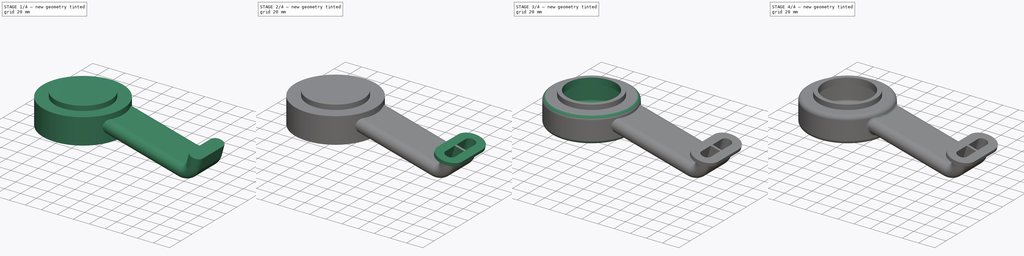
[diagram: build sequence overview — one tinted view per stage of 4, left to right]
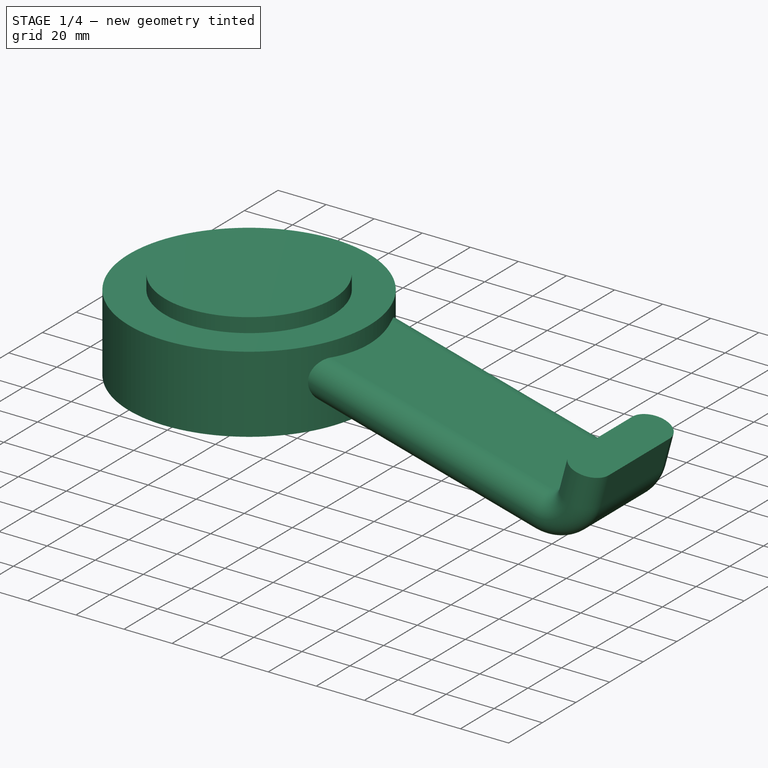
[diagram: stage 1 of 4 — iso view after this stage's code; geometry added in this stage tinted green]
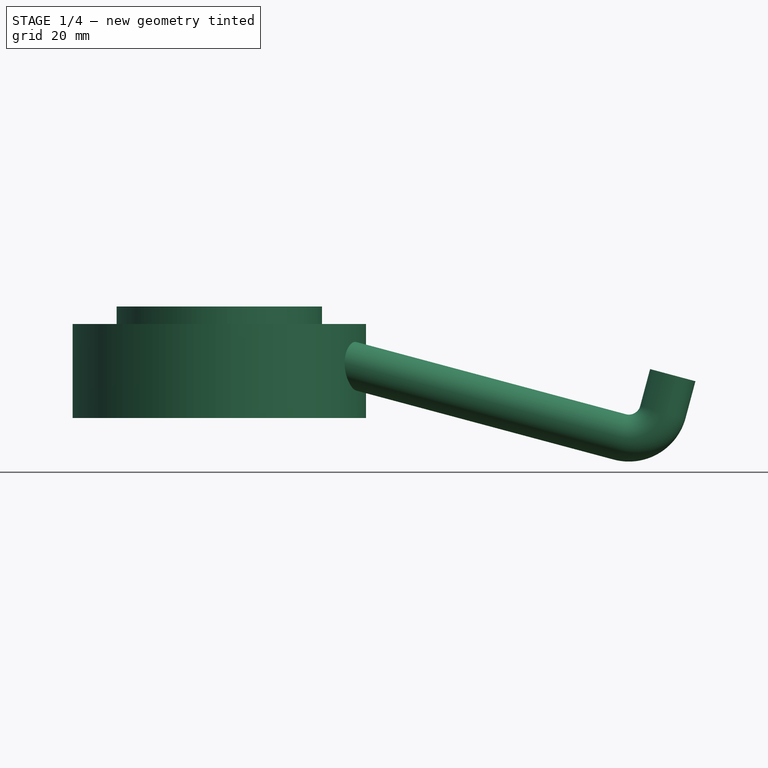
[diagram: stage 1 of 4 — front view after this stage's code; geometry added in this stage tinted green]
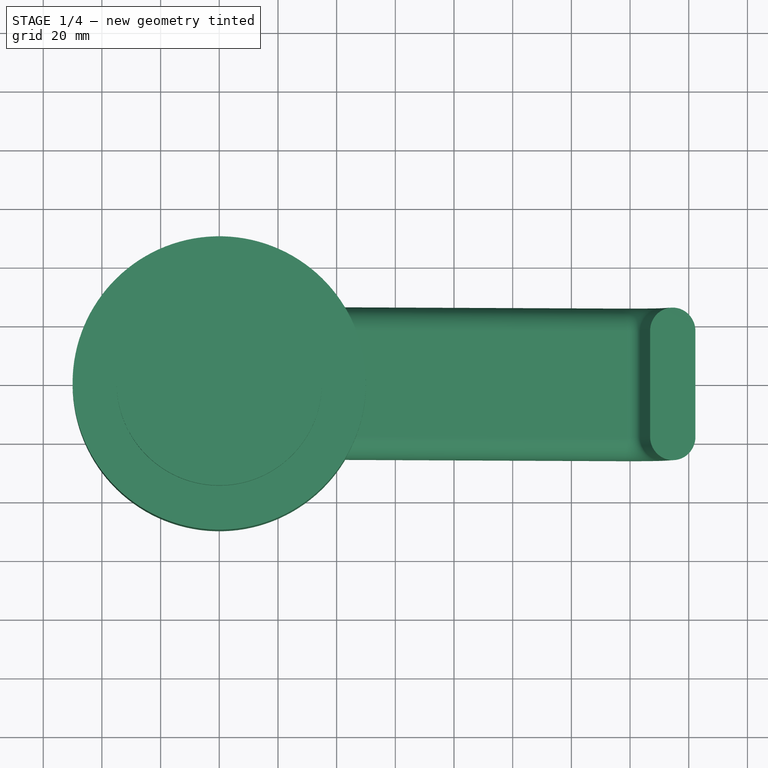
[diagram: stage 1 of 4 — top view after this stage's code; geometry added in this stage tinted green]
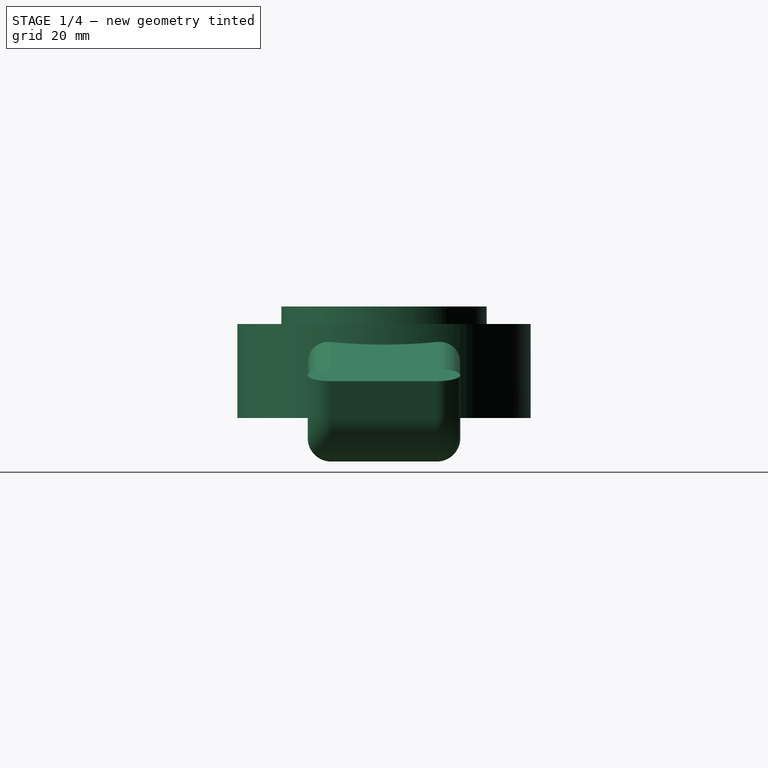
[diagram: stage 1 of 4 — right view after this stage's code; geometry added in this stage tinted green]
FCSTD DOCUMENT  (FreeCAD 0.21R33771 (Git))
Label: ex52
License: All rights reserved
LicenseURL: https://en.wikipedia.org/wiki/All_rights_reserved
objects: Sketcher::SketchObject×10, PartDesign::Fillet×4, PartDesign::Pad×3, PartDesign::Pocket×3, PartDesign::AdditivePipe×2, PartDesign::Plane×1, PartDesign::SubtractivePipe×1, PartDesign::Body×1
note: 38 computed .brp shape members not serialized (recipe doc carries the construction recipe); baked Part::Feature solids carry a one-line shape summary decoded from their .brp

FEATURE [Sketcher::SketchObject] Sketch
  FullyConstrained = true
  MapMode = 5
  Support = -> [XY_Plane]
  sketch-geometry (1):
    g0: Circle CenterX=0 CenterY=0 CenterZ=0 NormalX=0 NormalY=0 NormalZ=1 AngleXU=0 Radius=50
  constraints (2):
    c: Coincident(g0,g-1)
    c: Radius(g0) = 50
FEATURE [PartDesign::Pad] Pad
  Direction = (0,0,1)
  Length = 32
  Length2 = 10
  Profile = -> Sketch
  ReferenceAxis = -> Sketch [N_Axis]
  Type = 0
FEATURE [Sketcher::SketchObject] Sketch001
  FullyConstrained = true
  MapMode = 5
  Placement = pos=(0,0,32) rot=(0,0,1;0rad)
  Support = -> [Pad]
  sketch-geometry (1):
    g0: Circle CenterX=0 CenterY=0 CenterZ=0 NormalX=0 NormalY=0 NormalZ=1 AngleXU=0 Radius=35
  constraints (2):
    c: Coincident(g0,g-1)
    c: Radius(g0) = 35
FEATURE [PartDesign::Pad] Pad001
  BaseFeature = -> Pad
  Direction = (0,0,1)
  Length = 6
  Length2 = 10
  Profile = -> Sketch001
  ReferenceAxis = -> Sketch001 [N_Axis]
  Type = 0
FEATURE [Sketcher::SketchObject] Sketch002
  ExternalGeometry = -> [Pad001]
  FullyConstrained = true
  MapMode = 5
  Placement = pos=(0,0,0) rot=(1,0,0;1.5708rad)
  Support = -> [XZ_Plane]
  sketch-geometry (5):
    g0: LineSegment StartX=25 StartY=23.4165 StartZ=0 EndX=136.484 EndY=-6.45542 EndZ=0
    g1: LineSegment StartX=151.181 StartY=2.02986 StartZ=0 EndX=154.545 EndY=14.5869 EndZ=0
    g2: LineSegment StartX=139.09 StartY=18.728 StartZ=0 EndX=170 EndY=10.4458 EndZ=0
    g3: ArcOfCircle CenterX=139.589 CenterY=5.13569 CenterZ=0 NormalX=0 NormalY=0 NormalZ=1 AngleXU=0 Radius=12 StartAngle=4.45059 EndAngle=6.02139
    g4: LineSegment StartX=50 StartY=25 StartZ=0 EndX=79.58 EndY=17.0741 EndZ=0
  constraints (16):
    c: Symmetric(g2,g2,g1)
    c: Perpendicular(g1,g2)
    c: Tangent(g0,g3) = -1.5708
    c: Tangent(g1,g3) = -1.5708
    c: Radius(g3) = 12
    c: Distance(g2,g0) = 25
    c: Distance(g2) = 32
    c: DistanceX(g-5,g2) = 220
    c: PointOnObject(g4,g-3)
    c: Parallel(g4,g0)
    c: Distance(g4,g0) = 8
    c: DistanceY(g4,g-5) = 7
    c: Angle(g0,g-1) = 0.261799
    c: DistanceX(g-1,g0) = 25
    c: DistanceX(g4,g4) = 29.58
    c: Perpendicular(g0,g1)
FEATURE [PartDesign::Plane] DatumPlane
  Length = 130.22
  MapMode = 7
  Placement = pos=(154.545,-3.2e-15,14.5869) rot=(-0.704063,0.704063,0.092692;3.32645rad)
  ResizeMode = 0
  Support = -> [Sketch002]
  Width = 259.058
FEATURE [Sketcher::SketchObject] Sketch003
  FullyConstrained = true
  MapMode = 5
  Placement = pos=(154.545,-3.2e-15,14.5869) rot=(-0.704063,0.704063,0.092692;3.32645rad)
  Support = -> [DatumPlane]
  sketch-geometry (4):
    g0: ArcOfCircle CenterX=-18 CenterY=0 CenterZ=0 NormalX=0 NormalY=0 NormalZ=1 AngleXU=0 Radius=8 StartAngle=1.5708 EndAngle=4.71239
    g1: ArcOfCircle CenterX=18 CenterY=0 CenterZ=0 NormalX=0 NormalY=0 NormalZ=1 AngleXU=0 Radius=8 StartAngle=4.71239 EndAngle=7.85398
    g2: LineSegment StartX=-18 StartY=-8 StartZ=0 EndX=18 EndY=-8 EndZ=0
    g3: LineSegment StartX=18 StartY=8 StartZ=0 EndX=-18 EndY=8 EndZ=0
  constraints (9):
    c: Tangent(g0,g2) = -1.5708
    c: Tangent(g2,g1) = -1.5708
    c: Tangent(g1,g3) = -1.5708
    c: Tangent(g3,g0) = -1.5708
    c: Equal(g0,g1)
    c: PointOnObject(g0,g-1)
    c: Symmetric(g0,g1,g-1)
    c: DistanceX(g0,g1) = 36
    c: DistanceY(g0,g0) = 16
FEATURE [PartDesign::AdditivePipe] AdditivePipe
  AuxilleryCurvelinear = true
  AuxillerySpineTangent = false
  BaseFeature = -> Pad001
  Binormal = (0,0,0)
  Mode = 0
  Profile = -> Sketch003
  Spine = -> Sketch002 [Edge3,Edge2,Edge1]
  SpineTangent = false
  Transformation = 0
  Transition = 0
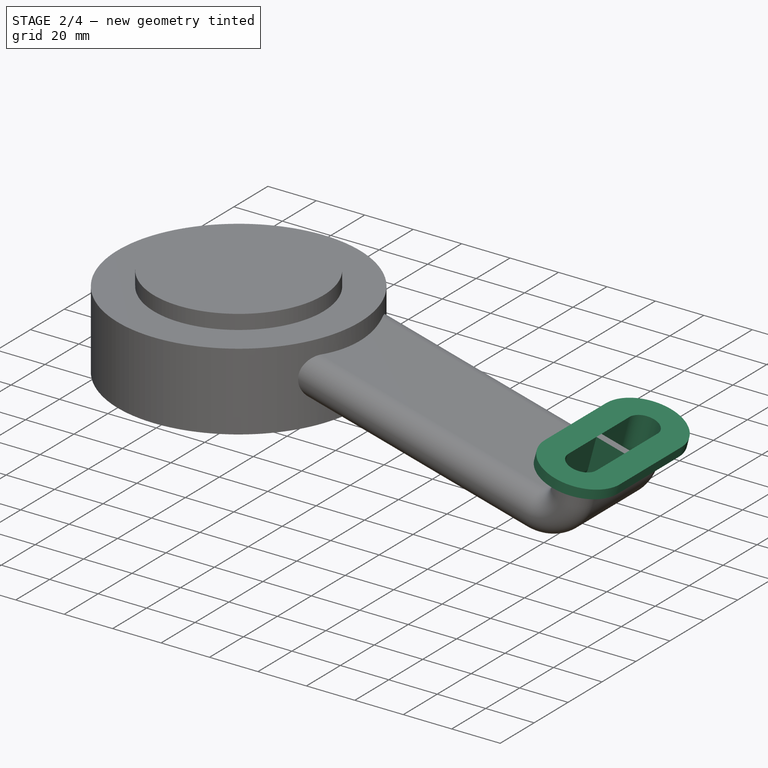
[diagram: stage 2 of 4 — iso view after this stage's code; geometry added in this stage tinted green]
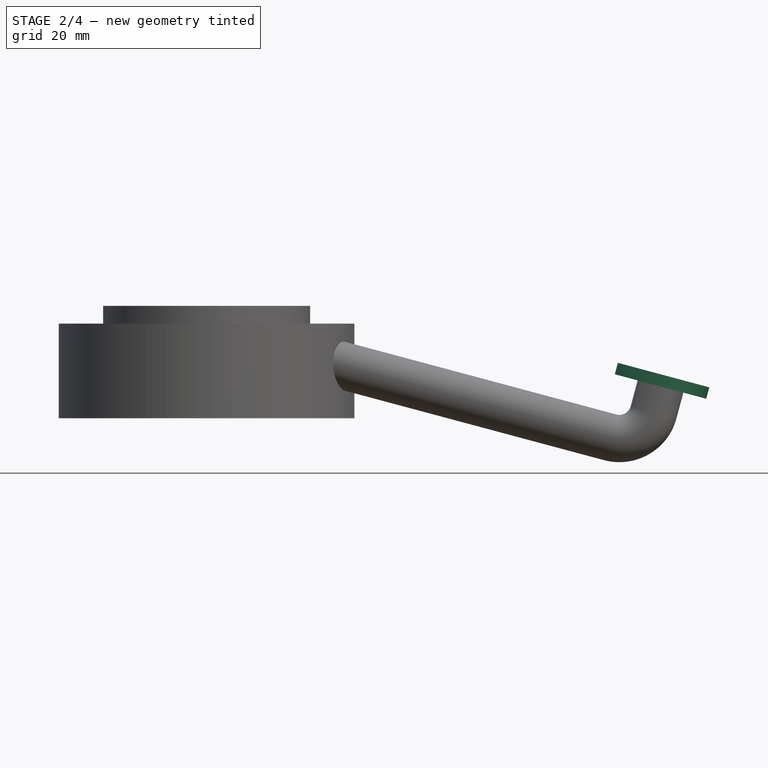
[diagram: stage 2 of 4 — front view after this stage's code; geometry added in this stage tinted green]
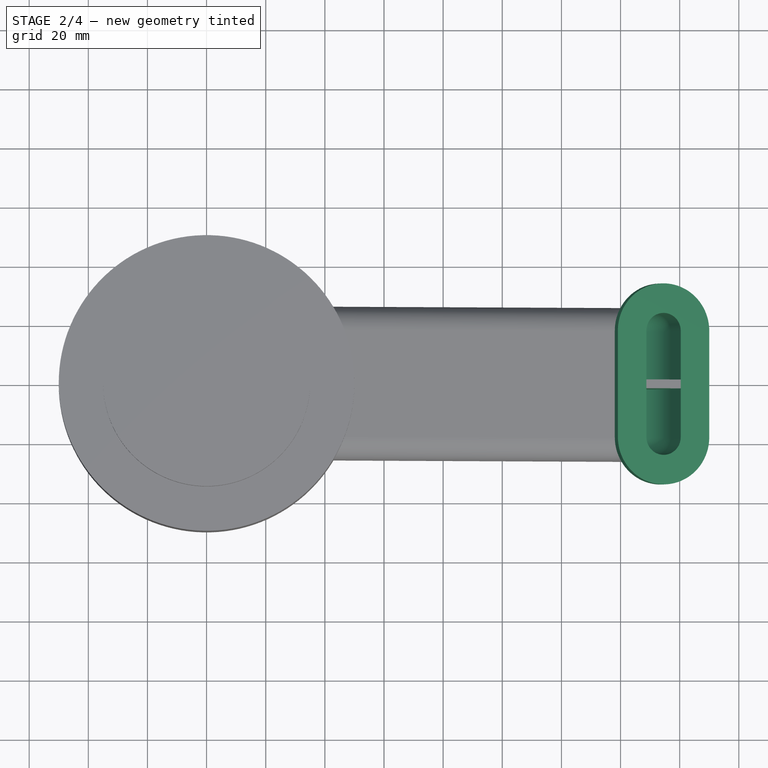
[diagram: stage 2 of 4 — top view after this stage's code; geometry added in this stage tinted green]
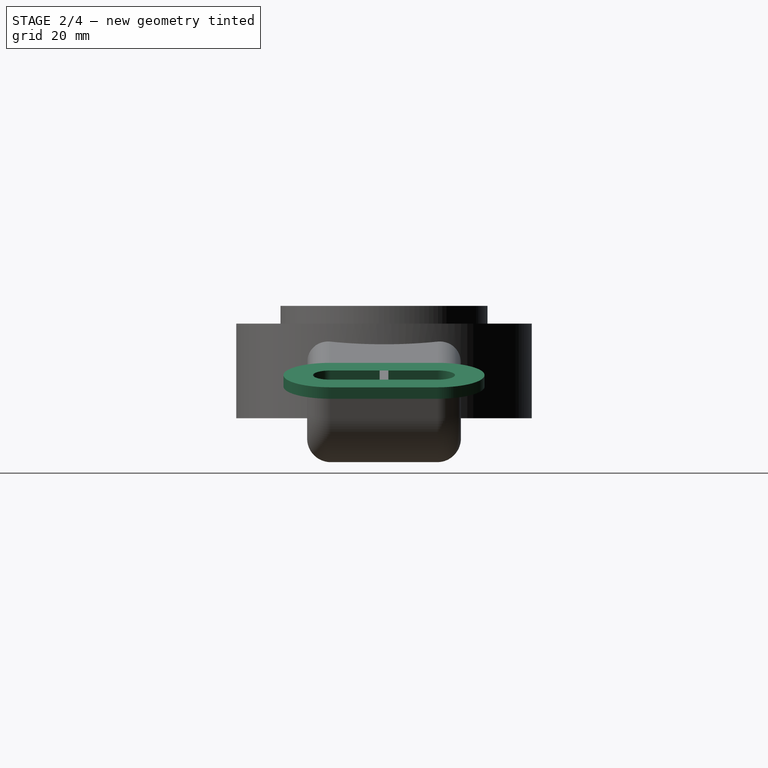
[diagram: stage 2 of 4 — right view after this stage's code; geometry added in this stage tinted green]
FEATURE [Sketcher::SketchObject] Sketch004
  ExternalGeometry = -> [AdditivePipe]
  FullyConstrained = true
  MapMode = 5
  Placement = pos=(154.545,-3.2e-15,14.5869) rot=(-0.704063,0.704063,0.092692;3.32645rad)
  Support = -> [DatumPlane]
  sketch-geometry (4):
    g0: ArcOfCircle CenterX=-18 CenterY=0 CenterZ=0 NormalX=0 NormalY=0 NormalZ=1 AngleXU=0 Radius=16 StartAngle=1.5708 EndAngle=4.71239
    g1: ArcOfCircle CenterX=18 CenterY=0 CenterZ=0 NormalX=0 NormalY=0 NormalZ=1 AngleXU=0 Radius=16 StartAngle=4.71239 EndAngle=7.85398
    g2: LineSegment StartX=-18 StartY=-16 StartZ=0 EndX=18 EndY=-16 EndZ=0
    g3: LineSegment StartX=18 StartY=16 StartZ=0 EndX=-18 EndY=16 EndZ=0
  constraints (8):
    c: Tangent(g0,g2) = -1.5708
    c: Tangent(g2,g1) = -1.5708
    c: Tangent(g1,g3) = -1.5708
    c: Tangent(g3,g0) = -1.5708
    c: Equal(g0,g1)
    c: Coincident(g0,g-4)
    c: Coincident(g1,g-3)
    c: DistanceY(g1,g1) = 32
FEATURE [Sketcher::SketchObject] Sketch005
  AttachmentOffset = pos=(0,0,1) rot=(0,0,1;0rad)
  FullyConstrained = false
  MapMode = 5
  Placement = pos=(154.286,-3e-15,13.621) rot=(-0.704063,0.704063,0.092692;3.32645rad)
  Support = -> [DatumPlane]
  sketch-geometry (11):
    g0: ArcOfCircle CenterX=-18 CenterY=0 CenterZ=0 NormalX=0 NormalY=0 NormalZ=1 AngleXU=0 Radius=6 StartAngle=1.5708 EndAngle=4.71239
    g1: ArcOfCircle CenterX=18 CenterY=0 CenterZ=0 NormalX=0 NormalY=0 NormalZ=1 AngleXU=0 Radius=6 StartAngle=4.71239 EndAngle=7.85398
    g2: LineSegment StartX=-18 StartY=-6 StartZ=0 EndX=-1.5 EndY=-6 EndZ=0
    g3: LineSegment StartX=18 StartY=6 StartZ=0 EndX=1.5 EndY=6 EndZ=0
    g4: LineSegment StartX=-1.5 StartY=-6 StartZ=0 EndX=-1.5 EndY=6 EndZ=0
    g5: LineSegment StartX=1.5 StartY=6 StartZ=0 EndX=1.5 EndY=-6 EndZ=0
    g6: GeomPoint X=0 Y=0 Z=0
    g7: LineSegment StartX=-1.5 StartY=6 StartZ=0 EndX=-18 EndY=6 EndZ=0
    g8: LineSegment StartX=1.5 StartY=-6 StartZ=0 EndX=18 EndY=-6 EndZ=0
    g9: LineSegment StartX=-1.5 StartY=6 StartZ=0 EndX=1.5 EndY=6 EndZ=0
    g10: LineSegment StartX=-1.5 StartY=-6 StartZ=0 EndX=1.5 EndY=-6 EndZ=0
  constraints (20):
    c: Tangent(g0,g2) = -1.5708
    c: Coincident(g8,g1) = -1.5708
    c: Tangent(g1,g3) = -1.5708
    c: Coincident(g7,g0) = -1.5708
    c: Equal(g0,g1)
    c: DistanceY(g0,g0) = 12
    c: Vertical(g4)
    c: Vertical(g5)
    c: Symmetric(g5,g4,g6)
    c: Coincident(g6,g-1)
    c: DistanceX(g4,g5) = 3
    c: PointOnObject(g7,g4)
    c: PointOnObject(g2,g4)
    c: PointOnObject(g8,g5)
    c: Coincident(g9,g4)
    c: Coincident(g9,g3)
    c: Horizontal(g9)
    c: Coincident(g10,g2)
    c: Coincident(g10,g5)
    c: Horizontal(g10)
FEATURE [PartDesign::Pad] Pad002
  BaseFeature = -> AdditivePipe
  Direction = (-0.258819,2e-16,-0.965926)
  Length = 4
  Length2 = 10
  Profile = -> Sketch004
  ReferenceAxis = -> Sketch004 [N_Axis]
  Type = 0
FEATURE [PartDesign::SubtractivePipe] SubtractivePipe
  AuxilleryCurvelinear = true
  AuxillerySpineTangent = false
  BaseFeature = -> Pad002
  Binormal = (0,0,0)
  Mode = 0
  Profile = -> Sketch005
  Spine = -> Sketch002 [Edge3,Edge2,Edge1]
  SpineTangent = false
  Transformation = 0
  Transition = 0
FEATURE [Sketcher::SketchObject] Sketch006
  ExternalGeometry = -> [SubtractivePipe]
  FullyConstrained = true
  MapMode = 5
  Placement = pos=(154.545,-3.2e-15,14.5869) rot=(-0.704063,0.704063,0.092692;3.32645rad)
  Support = -> [DatumPlane]
  sketch-geometry (5):
    g0: LineSegment StartX=-1.5 StartY=-6.5 StartZ=0 EndX=-1.5 EndY=6.5 EndZ=0
    g1: LineSegment StartX=-1.5 StartY=6.5 StartZ=0 EndX=1.5 EndY=6.5 EndZ=0
    g2: LineSegment StartX=1.5 StartY=6.5 StartZ=0 EndX=1.5 EndY=-6.5 EndZ=0
    g3: LineSegment StartX=1.5 StartY=-6.5 StartZ=0 EndX=-1.5 EndY=-6.5 EndZ=0
    g4: GeomPoint X=0 Y=0 Z=0
  constraints (12):
    c: Coincident(g0,g1)
    c: Coincident(g1,g2)
    c: Coincident(g2,g3)
    c: Coincident(g3,g0)
    c: Horizontal(g3)
    c: Vertical(g0)
    c: Vertical(g2)
    c: Symmetric(g1,g0,g4)
    c: Coincident(g4,g-1)
    c: DistanceX(g1,g1) = 3
    c: DistanceY(g0,g0) = 13
    c: Horizontal(g1)
FEATURE [PartDesign::AdditivePipe] AdditivePipe001
  AuxilleryCurvelinear = true
  AuxillerySpineTangent = false
  BaseFeature = -> SubtractivePipe
  Binormal = (0,0,0)
  Mode = 0
  Profile = -> Sketch006
  Refine = true
  Spine = -> Sketch002 [Edge3,Edge2,Edge1]
  SpineTangent = false
  Transformation = 0
  Transition = 0
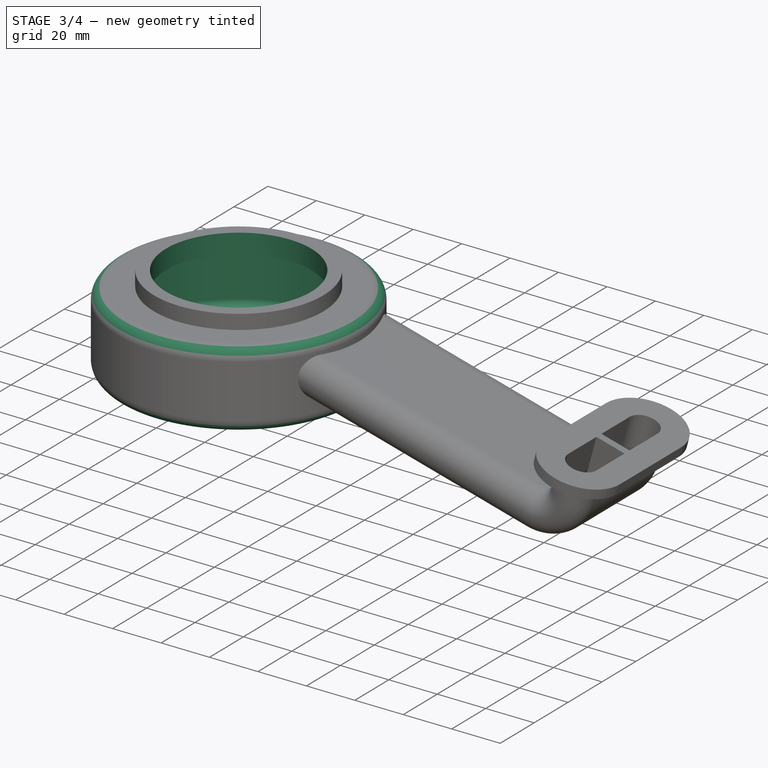
[diagram: stage 3 of 4 — iso view after this stage's code; geometry added in this stage tinted green]
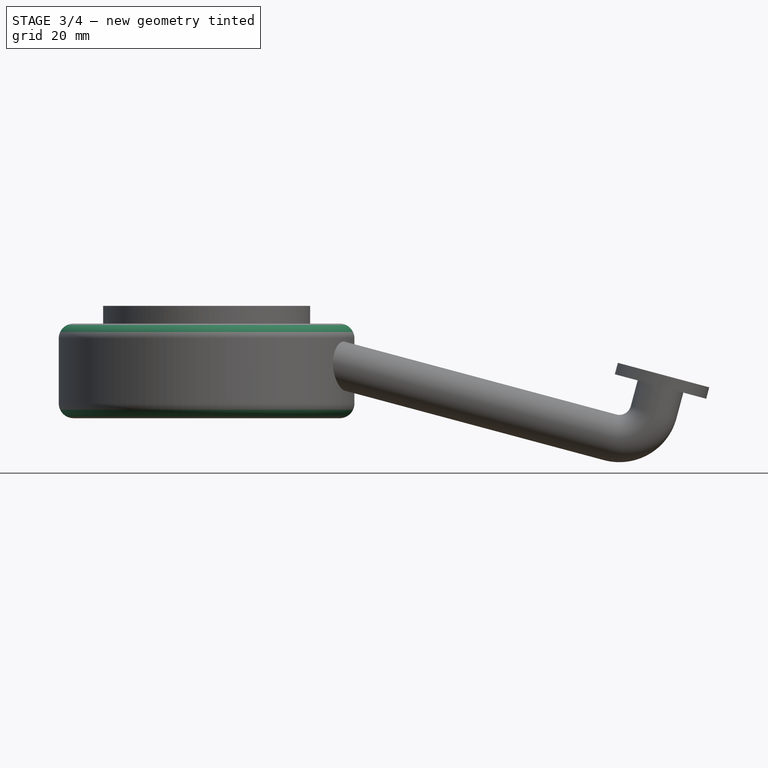
[diagram: stage 3 of 4 — front view after this stage's code; geometry added in this stage tinted green]
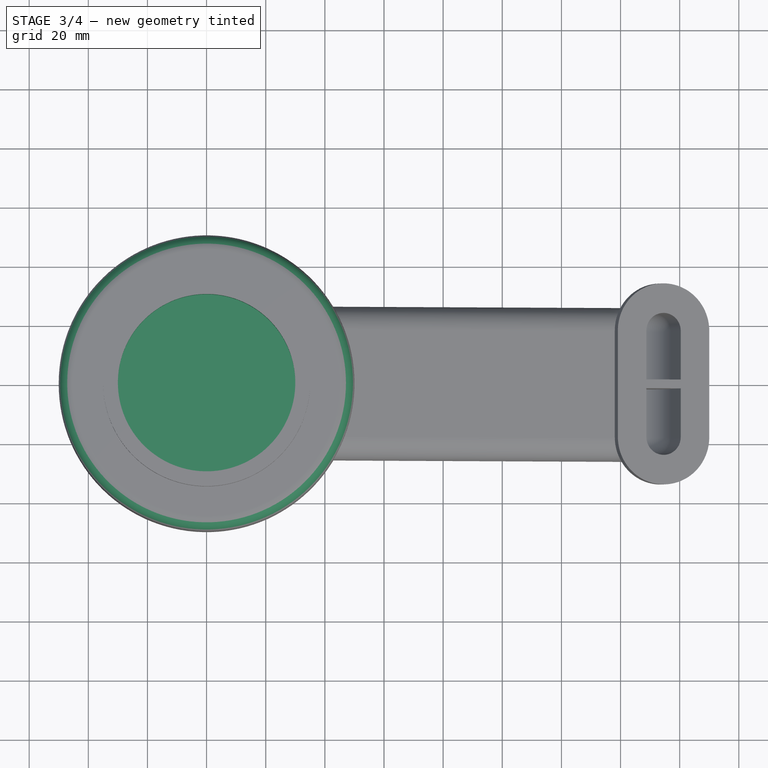
[diagram: stage 3 of 4 — top view after this stage's code; geometry added in this stage tinted green]
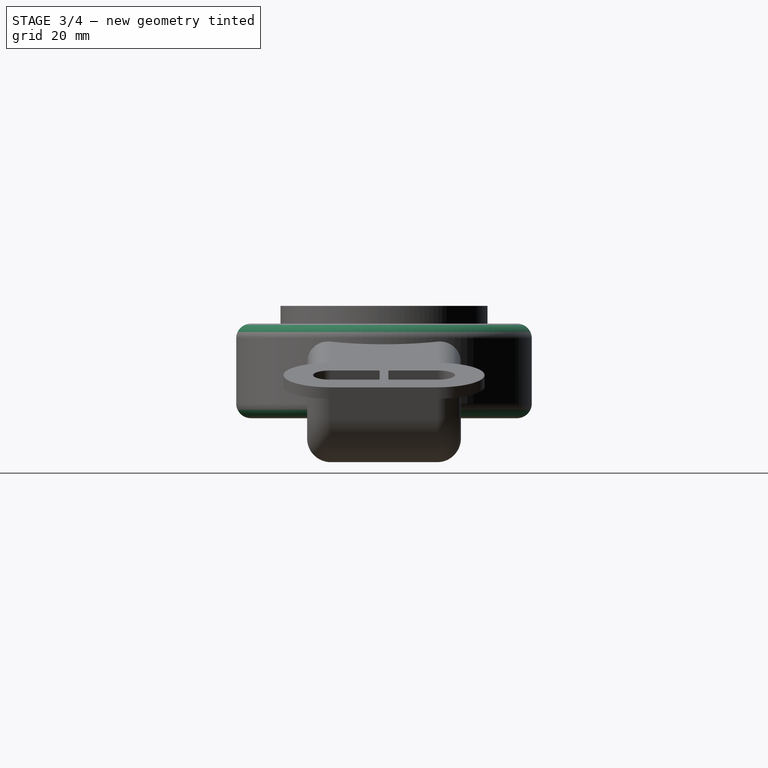
[diagram: stage 3 of 4 — right view after this stage's code; geometry added in this stage tinted green]
FEATURE [Sketcher::SketchObject] Sketch007
  ExternalGeometry = -> [AdditivePipe001]
  FullyConstrained = true
  MapMode = 5
  Support = -> [XY_Plane]
  sketch-geometry (1):
    g0: Circle CenterX=0 CenterY=0 CenterZ=0 NormalX=0 NormalY=0 NormalZ=1 AngleXU=0 Radius=48
  constraints (2):
    c: Coincident(g0,g-3)
    c: Radius(g0) = 48
FEATURE [PartDesign::Pocket] Pocket
  BaseFeature = -> AdditivePipe001
  Direction = (0,0,-1)
  Length = 30
  Length2 = -2
  Profile = -> Sketch007
  ReferenceAxis = -> Sketch007 [N_Axis]
  Reversed = true
  Type = 4
FEATURE [Sketcher::SketchObject] Sketch008
  FullyConstrained = true
  MapMode = 5
  Placement = pos=(0,0,38) rot=(0,0,1;0rad)
  Support = -> [Pocket]
  sketch-geometry (1):
    g0: Circle CenterX=0 CenterY=0 CenterZ=0 NormalX=0 NormalY=0 NormalZ=1 AngleXU=0 Radius=30
  constraints (2):
    c: Coincident(g0,g-1)
    c: Radius(g0) = 30
FEATURE [PartDesign::Pocket] Pocket001
  BaseFeature = -> Pocket
  Direction = (0,0,-1)
  Length = 5
  Length2 = 5
  Profile = -> Sketch008
  ReferenceAxis = -> Sketch008 [N_Axis]
  Type = 2
FEATURE [PartDesign::Fillet] Fillet
  Base = -> Pocket001 [Edge8,Edge1]
  BaseFeature = -> Pocket001
  Radius = 5
  SupportTransform = false
  UseAllEdges = false
FEATURE [PartDesign::Fillet] Fillet001
  Base = -> Fillet [Edge92]
  BaseFeature = -> Fillet
  Radius = 3
  SupportTransform = false
  UseAllEdges = false
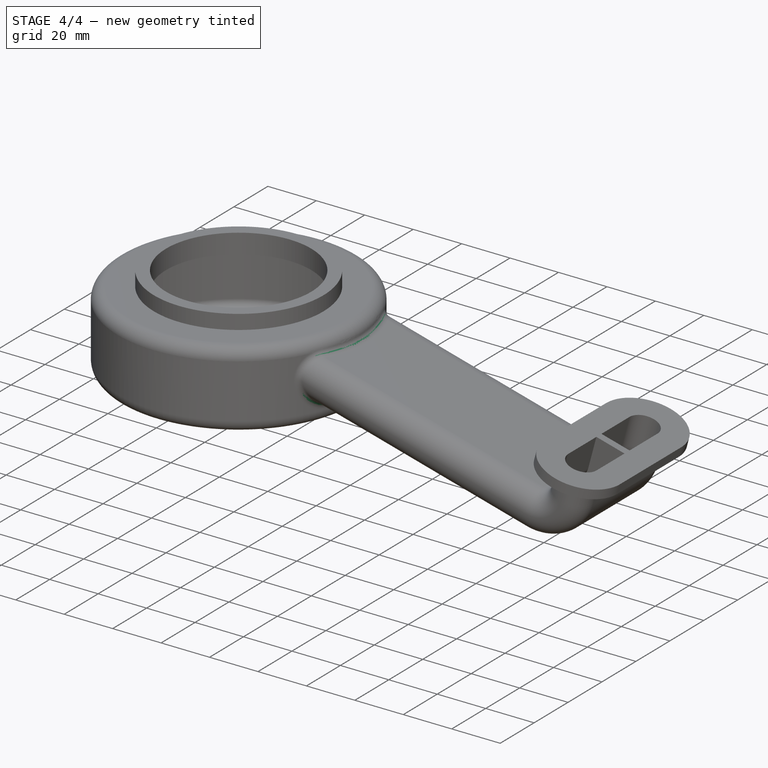
[diagram: stage 4 of 4 — iso view after this stage's code; geometry added in this stage tinted green]
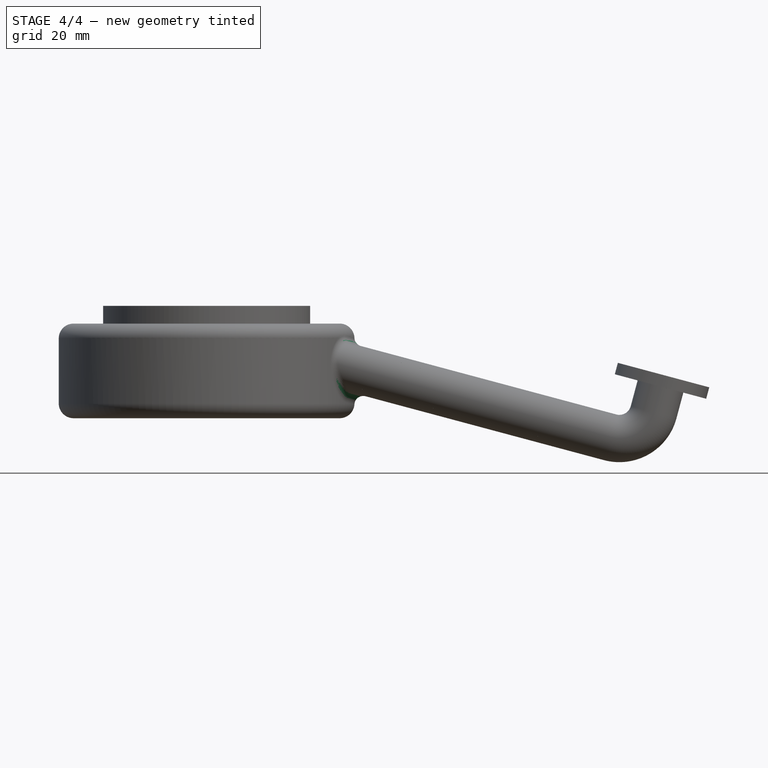
[diagram: stage 4 of 4 — front view after this stage's code; geometry added in this stage tinted green]
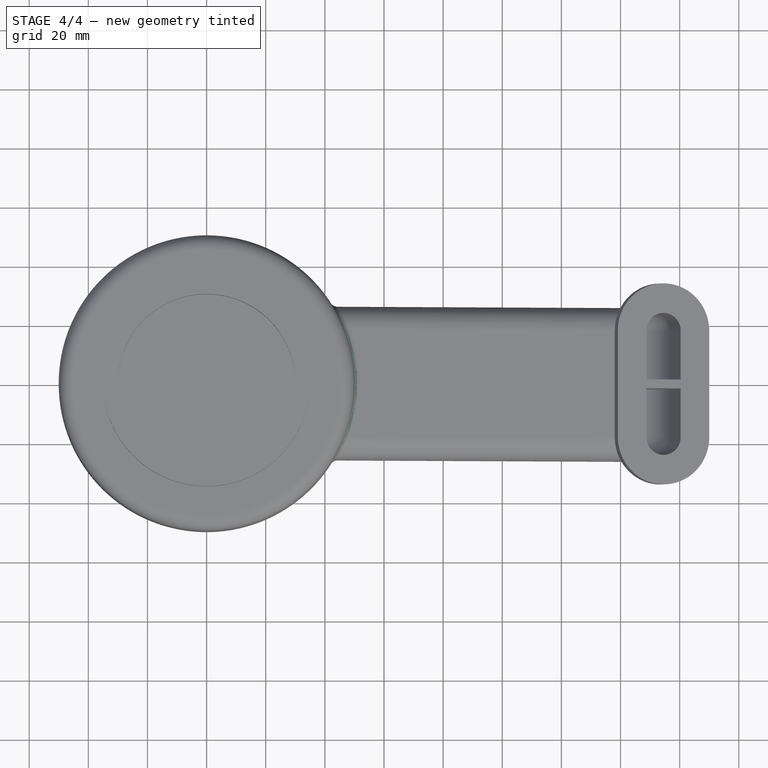
[diagram: stage 4 of 4 — top view after this stage's code; geometry added in this stage tinted green]
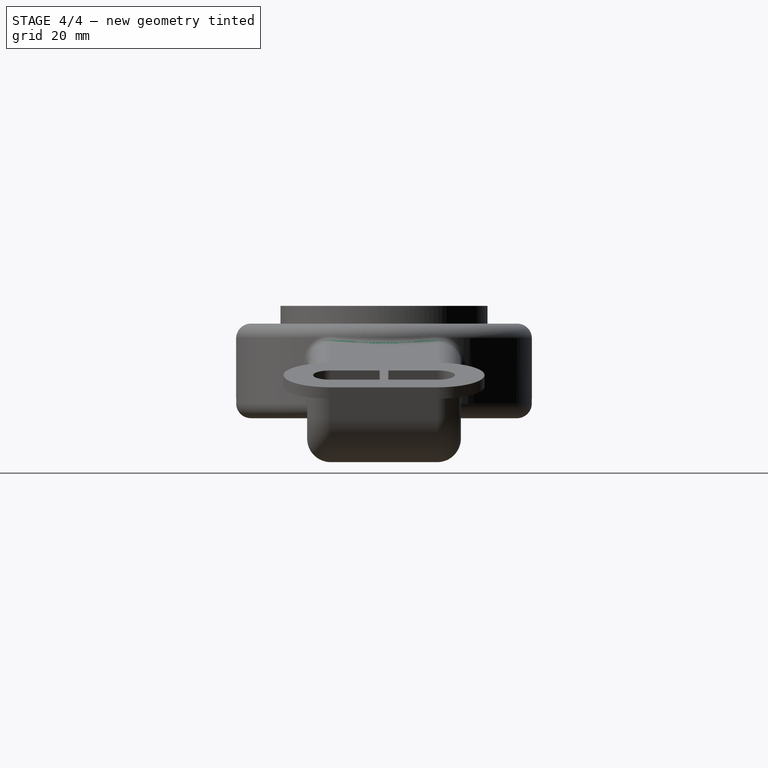
[diagram: stage 4 of 4 — right view after this stage's code; geometry added in this stage tinted green]
FEATURE [PartDesign::Fillet] Fillet002
  Base = -> Fillet001 [Edge3]
  BaseFeature = -> Fillet001
  Radius = 3
  SupportTransform = false
  UseAllEdges = false
FEATURE [PartDesign::Fillet] Fillet003
  Base = -> Fillet002 [Edge109,Edge110]
  BaseFeature = -> Fillet002
  Radius = 3
  SupportTransform = false
  UseAllEdges = false
FEATURE [Sketcher::SketchObject] Sketch009
  ExternalGeometry = -> [Fillet003]
  FullyConstrained = false
  MapMode = 5
  Placement = pos=(0,0,0) rot=(1,0,0;1.5708rad)
  Support = -> [XZ_Plane]
  sketch-geometry (4):
    g0: LineSegment StartX=60 StartY=20.25 StartZ=0 EndX=60 EndY=7.82664 EndZ=0
    g1: LineSegment StartX=60 StartY=20.25 StartZ=0 EndX=40.1321 EndY=25.5735 EndZ=0
    g2: LineSegment StartX=40.1321 StartY=25.5735 StartZ=0 EndX=38.5885 EndY=13.5638 EndZ=0
    g3: LineSegment StartX=60 StartY=7.82664 StartZ=0 EndX=38.5885 EndY=13.5638 EndZ=0
  constraints (10):
    c: PointOnObject(g0,g-3)
    c: PointOnObject(g0,g-4)
    c: Vertical(g0)
    c: Coincident(g1,g0)
    c: Coincident(g2,g1)
    c: Coincident(g3,g0)
    c: Coincident(g3,g2)
    c: PointOnObject(g-4,g3)
    c: PointOnObject(g-3,g1)
    c: DistanceX(g-1,g0) = 60
FEATURE [PartDesign::Pocket] Pocket002
  BaseFeature = -> Fillet003
  Direction = (0,1,2e-16)
  Length = 5
  Length2 = 5
  Midplane = true
  Profile = -> Sketch009
  ReferenceAxis = -> Sketch009 [N_Axis]
  Type = 0
FEATURE [PartDesign::Body] Body
  Group = -> [Sketch,Pad,Sketch001,Pad001,Sketch002,DatumPlane,Sketch003,AdditivePipe,Sketch004,Sketch005,Pad002,SubtractivePipe,Sketch006,AdditivePipe001,Sketch007,Pocket,Sketch008,Pocket001,Fillet,Fillet001,Fillet002,Fillet003,Sketch009,Pocket002]
  Origin = -> Origin
  Tip = -> Pocket002
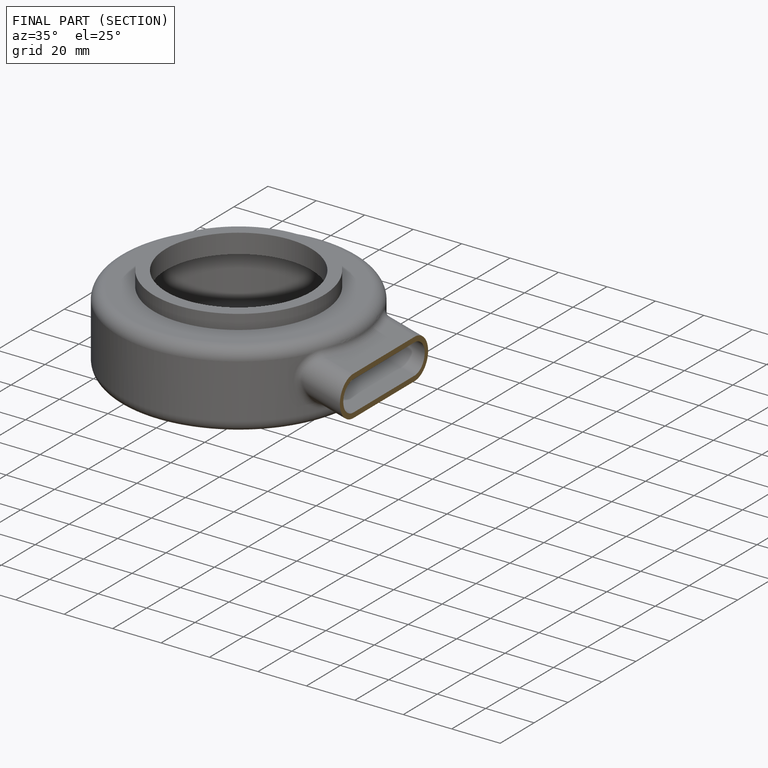
[diagram: finished part — half-section view (interior)]
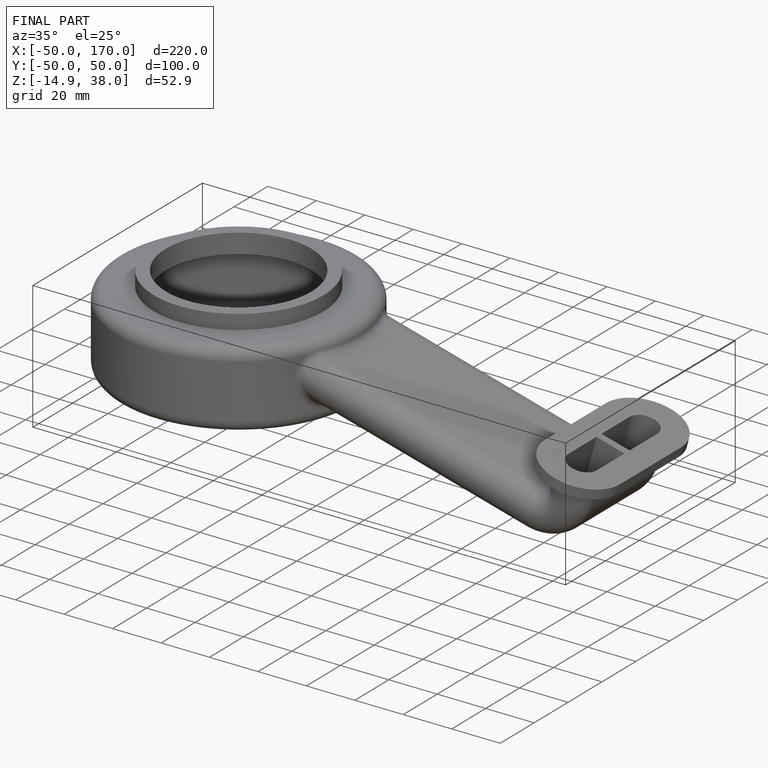
[diagram: finished part — iso view with bounding-box wireframe]
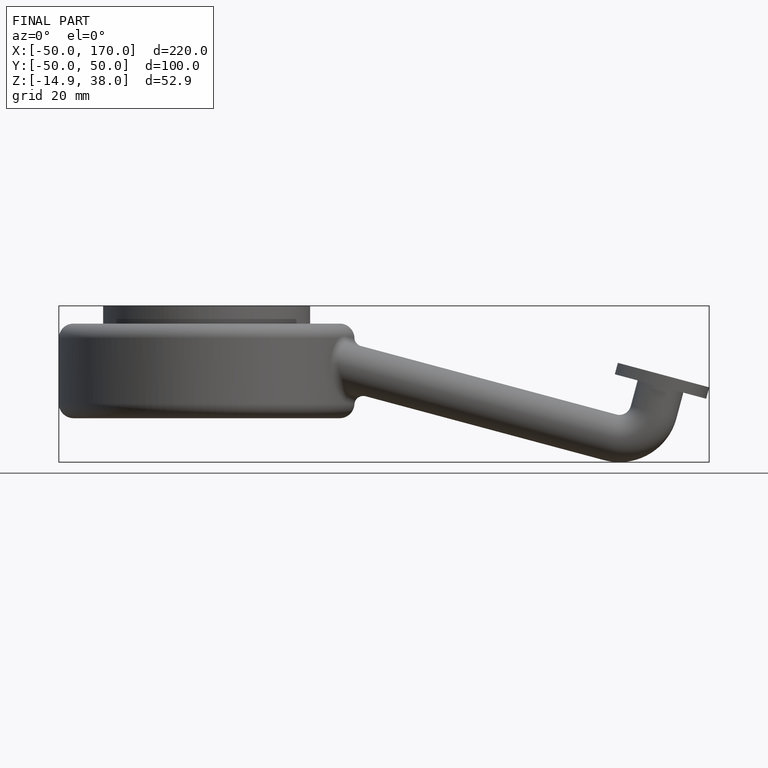
[diagram: finished part — front view with bounding-box wireframe]
